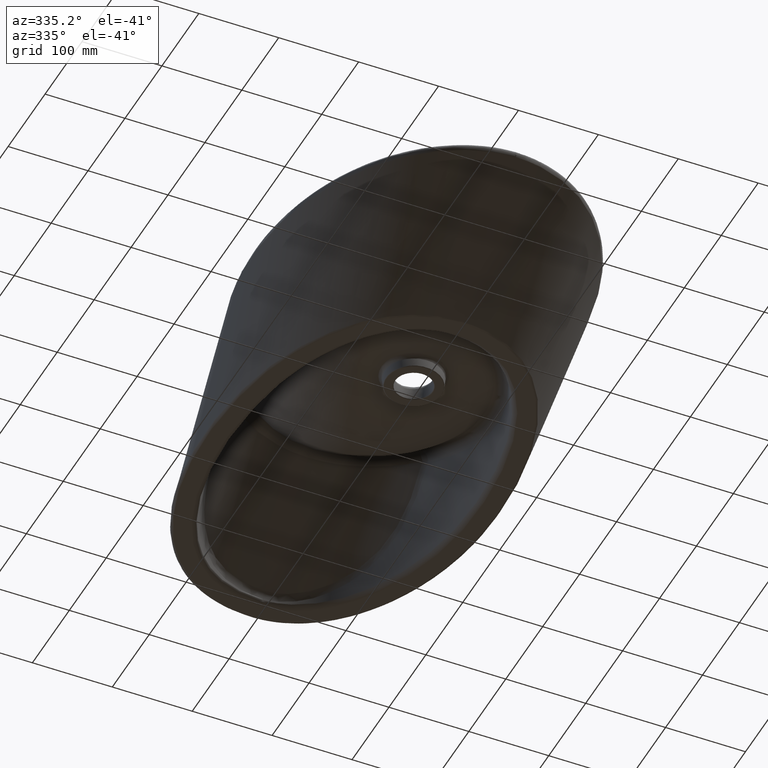
[diagram: clean part render]
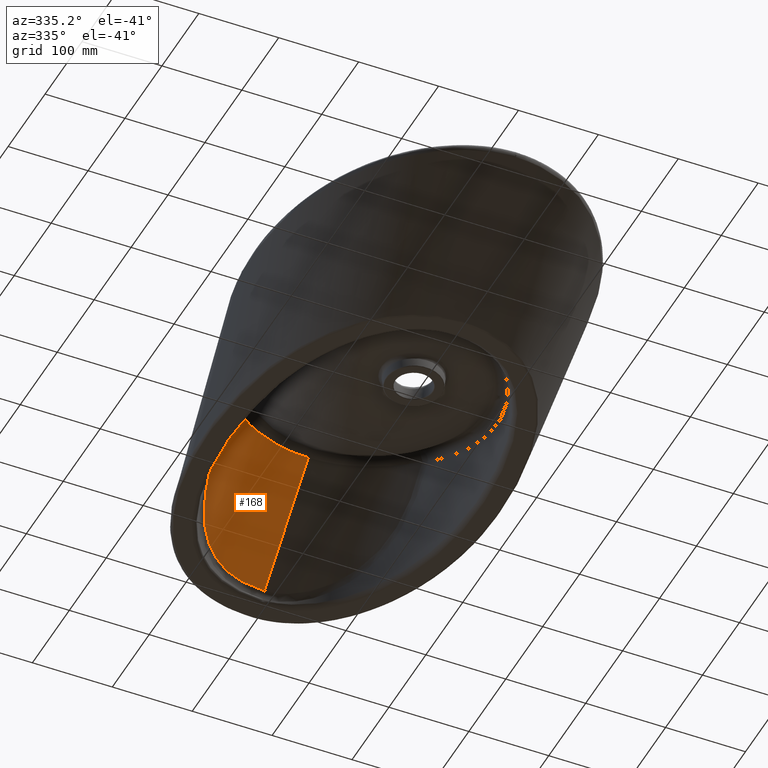
[diagram: same view with one face highlighted and labeled with its STEP entity id]
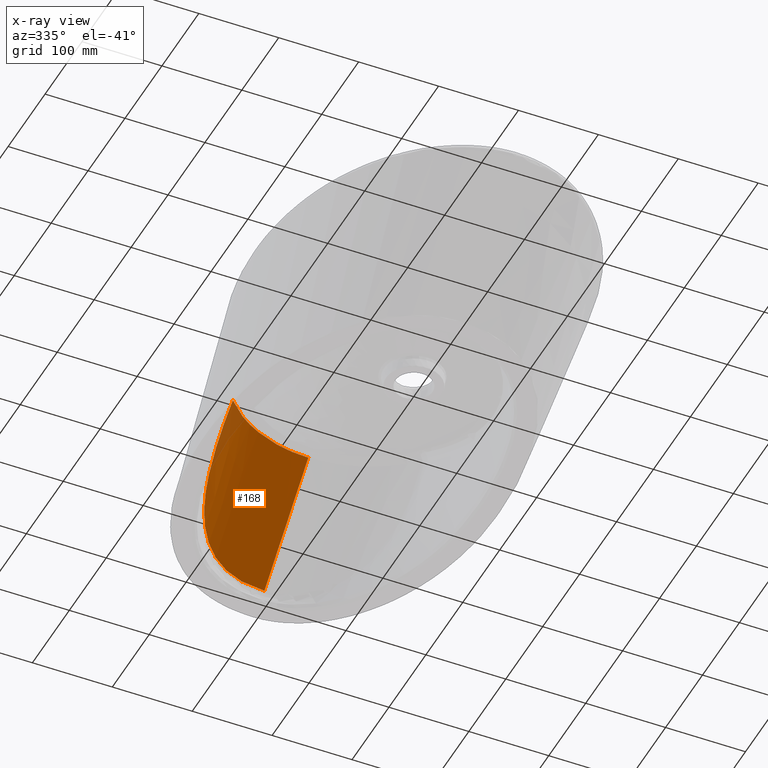
[diagram: x-ray of the same camera — body ghosted, the highlighted face saturated]
A machine part, auxiliary view. The second image highlights one B-rep face of the part: STEP entity #168.
The next image is the same camera in x-ray: the body ghosted, the highlighted face saturated — about 5% of this face is hidden behind the body in this view.
In plain terms, the highlighted face is a freeform B-spline surface patch.
Its self-contained STEP definition (entity closure, byte-faithful):
#124=B_SPLINE_SURFACE_WITH_KNOTS('',3,3,((#15208,#15209,#15210,#15211),
(#15212,#15213,#15214,#15215),(#15216,#15217,#15218,#15219),(#15220,#15221,
#15222,#15223),(#15224,#15225,#15226,#15227),(#15228,#15229,#15230,#15231),
(#15232,#15233,#15234,#15235),(#15236,#15237,#15238,#15239),(#15240,#15241,
#15242,#15243),(#15244,#15245,#15246,#15247),(#15248,#15249,#15250,#15251),
(#15252,#15253,#15254,#15255),(#15256,#15257,#15258,#15259),(#15260,#15261,
#15262,#15263),(#15264,#15265,#15266,#15267),(#15268,#15269,#15270,#15271),
(#15272,#15273,#15274,#15275),(#15276,#15277,#15278,#15279),(#15280,#15281,
#15282,#15283),(#15284,#15285,#15286,#15287),(#15288,#15289,#15290,#15291),
(#15292,#15293,#15294,#15295),(#15296,#15297,#15298,#15299),(#15300,#15301,
#15302,#15303),(#15304,#15305,#15306,#15307),(#15308,#15309,#15310,#15311),
(#15312,#15313,#15314,#15315),(#15316,#15317,#15318,#15319),(#15320,#15321,
#15322,#15323),(#15324,#15325,#15326,#15327),(#15328,#15329,#15330,#15331)),
 .UNSPECIFIED.,.F.,.F.,.F.,(4,3,3,3,3,3,3,3,3,3,4),(4,4),(0.,0.0625,0.125,
0.25,0.375,0.4375,0.46875,0.5,0.625,0.75,1.),(0.,1.),.UNSPECIFIED.);
#136=FACE_OUTER_BOUND('',#249,.T.);
#168=ADVANCED_FACE('',(#136),#124,.T.);
#249=EDGE_LOOP('',(#331,#332,#333));
#331=ORIENTED_EDGE('',*,*,#467,.F.);
#332=ORIENTED_EDGE('',*,*,#464,.T.);
#333=ORIENTED_EDGE('',*,*,#468,.F.);
#418=VERTEX_POINT('',#15028);
#419=VERTEX_POINT('',#15029);
#421=VERTEX_POINT('',#15195);
#464=EDGE_CURVE('',#418,#419,#522,.T.);
#467=EDGE_CURVE('',#418,#421,#525,.T.);
#468=EDGE_CURVE('',#421,#419,#526,.T.);
#522=B_SPLINE_CURVE_WITH_KNOTS('',3,(#15024,#15025,#15026,#15027),
 .UNSPECIFIED.,.F.,.F.,(4,4),(0.,1.),.UNSPECIFIED.);
#525=B_SPLINE_CURVE_WITH_KNOTS('',3,(#15169,#15170,#15171,#15172,#15173,
#15174,#15175,#15176,#15177,#15178,#15179,#15180,#15181,#15182,#15183,#15184,
#15185,#15186,#15187,#15188,#15189,#15190,#15191,#15192,#15193,#15194),
 .UNSPECIFIED.,.F.,.F.,(4,2,2,2,2,2,2,2,2,2,2,2,4),(0.,0.0625,0.125,0.1875,
0.25,0.375,0.4375,0.5,0.562499999999999,0.624999999999999,0.75,0.875,1.),
 .UNSPECIFIED.);
#526=B_SPLINE_CURVE_WITH_KNOTS('',3,(#15196,#15197,#15198,#15199,#15200,
#15201,#15202,#15203,#15204,#15205,#15206,#15207),.UNSPECIFIED.,.F.,.F.,
(4,2,2,2,2,4),(0.,0.25,0.5,0.625,0.75,1.),.UNSPECIFIED.);
#15024=CARTESIAN_POINT('',(0.00526221435447912,404.585390535855,-128.402446899208));
#15025=CARTESIAN_POINT('',(0.013482304066059,364.955097758971,-92.8837041527339));
#15026=CARTESIAN_POINT('',(0.0217517972458491,325.32480446231,-57.3649613170733));
#15027=CARTESIAN_POINT('',(0.0300698395684093,285.694510619619,-21.846218400915));
#15028=CARTESIAN_POINT('',(0.0030268173036909,404.58538890293,-128.402445360695));
#15029=CARTESIAN_POINT('',(0.0300752906413561,285.694511007152,-21.8462179021919));
#15169=CARTESIAN_POINT('',(0.00526221435444683,404.585390536568,-128.402446899847));
#15170=CARTESIAN_POINT('',(-5.84479397736561,404.581420674794,-128.398303884743));
#15171=CARTESIAN_POINT('',(-11.6686546200348,404.24147226028,-128.374219471475));
#15172=CARTESIAN_POINT('',(-23.2516911893435,402.740670141862,-128.198596000015));
#15173=CARTESIAN_POINT('',(-28.9809599261326,401.566848098731,-128.037076501992));
#15174=CARTESIAN_POINT('',(-40.0821515581655,398.343669660918,-127.504796034395));
#15175=CARTESIAN_POINT('',(-45.4904182574063,396.306700322967,-127.149301251226));
#15176=CARTESIAN_POINT('',(-56.0060958153043,391.341416278366,-126.203931678161));
#15177=CARTESIAN_POINT('',(-61.0447237896276,388.430622368401,-125.612461746905));
#15178=CARTESIAN_POINT('',(-75.1683611477704,378.623915369494,-123.36517505837));
#15179=CARTESIAN_POINT('',(-83.5393497676027,370.561511986093,-121.299098282006));
#15180=CARTESIAN_POINT('',(-94.1505992483372,357.28857163444,-117.292314278618));
#15181=CARTESIAN_POINT('',(-97.3994590895635,352.630234179171,-115.790426152635));
#15182=CARTESIAN_POINT('',(-103.206686192753,343.18130622598,-112.466915882935));
#15183=CARTESIAN_POINT('',(-105.785121447606,338.372926950398,-110.641589036555));
#15184=CARTESIAN_POINT('',(-110.397855216814,328.652452765974,-106.630864392746));
#15185=CARTESIAN_POINT('',(-112.42912262771,323.739912663223,-104.443148953366));
#15186=CARTESIAN_POINT('',(-115.98018969673,313.860763641147,-99.6271051165184));
#15187=CARTESIAN_POINT('',(-117.508570675528,308.859869266495,-96.9784728510605));
#15188=CARTESIAN_POINT('',(-121.302866374345,294.171646007261,-88.4909292947774));
#15189=CARTESIAN_POINT('',(-122.815183171886,284.774183232416,-82.0996292146151));
#15190=CARTESIAN_POINT('',(-124.508948728636,266.665555032568,-68.1237134668845));
#15191=CARTESIAN_POINT('',(-124.691641766524,257.909235713971,-60.5194884514314));
#15192=CARTESIAN_POINT('',(-124.146657647579,241.046379990769,-44.6636711215627));
#15193=CARTESIAN_POINT('',(-123.424769200599,232.95378232595,-36.4406241461405));
#15194=CARTESIAN_POINT('',(-122.388172659701,225.065706452454,-28.0432644481391));
#15195=CARTESIAN_POINT('',(-122.388172659701,225.065706452453,-28.0432644481386));
#15196=CARTESIAN_POINT('',(-122.388172659701,225.065706452453,-28.0432644481384));
#15197=CARTESIAN_POINT('',(-114.961655970901,234.236186104954,-26.8921776622449));
#15198=CARTESIAN_POINT('',(-106.778175792552,242.60286670883,-25.8874110990387));
#15199=CARTESIAN_POINT('',(-88.623288893781,257.43754669531,-24.2223637610885));
#15200=CARTESIAN_POINT('',(-78.5705924328633,263.900289120305,-23.5929418614976));
#15201=CARTESIAN_POINT('',(-62.8414135986258,271.813529151613,-22.9284916042052));
#15202=CARTESIAN_POINT('',(-57.4634116858846,274.168867243616,-22.7395626434815));
#15203=CARTESIAN_POINT('',(-46.421978334974,278.280532126651,-22.4113534248639));
#15204=CARTESIAN_POINT('',(-40.7254715195531,280.040547347075,-22.272185242991));
#15205=CARTESIAN_POINT('',(-23.5248271508844,284.258542682856,-21.9475187674602));
#15206=CARTESIAN_POINT('',(-11.8546249266025,285.700545634653,-21.8449227792393));
#15207=CARTESIAN_POINT('',(0.030069839282626,285.694511979074,-21.8462196193304));
#15208=CARTESIAN_POINT('',(0.978389827842134,284.977229181537,-21.2068317632611));
#15209=CARTESIAN_POINT('',(0.969080140628587,325.0834664354,-57.1518102427418));
#15210=CARTESIAN_POINT('',(0.959883168419812,365.189705684631,-93.0967865447074));
#15211=CARTESIAN_POINT('',(0.950805587187682,405.295947190886,-129.041760378659));
#15212=CARTESIAN_POINT('',(-2.36137308690813,285.002579470412,-21.2072028410091));
#15213=CARTESIAN_POINT('',(-2.36287716886204,325.106720512964,-57.15212832752));
#15214=CARTESIAN_POINT('',(-2.36450025699034,365.210853680476,-93.0970624827344));
#15215=CARTESIAN_POINT('',(-2.36624623822058,405.314978047681,-129.042006328953));
#15216=CARTESIAN_POINT('',(-5.67838462604163,284.90092925797,-21.2037154502028));
#15217=CARTESIAN_POINT('',(-5.65607622692948,325.011659765958,-57.1492625624812));
#15218=CARTESIAN_POINT('',(-5.63454200847416,365.122412462523,-93.0947845999663));
#15219=CARTESIAN_POINT('',(-5.61384743956083,405.233190432279,-129.040277944458));
#15220=CARTESIAN_POINT('',(-9.01180398411566,284.668834387521,-21.1958232870693));
#15221=CARTESIAN_POINT('',(-8.94930798435076,324.795976961289,-57.1425680665981));
#15222=CARTESIAN_POINT('',(-8.88848041455512,364.923163444808,-93.089268451172));
#15223=CARTESIAN_POINT('',(-8.82956533213082,405.050415329626,-129.035901121085));
#15224=CARTESIAN_POINT('',(-12.3452233421897,284.436739517073,-21.1879311239358));
#15225=CARTESIAN_POINT('',(-12.2425397417721,324.580294156619,-57.1358735707149));
#15226=CARTESIAN_POINT('',(-12.1424188206361,364.723914427094,-93.0837523023776));
#15227=CARTESIAN_POINT('',(-12.0452832247008,404.867640226974,-129.031524297712));
#15228=CARTESIAN_POINT('',(-15.6798634682971,284.074932542122,-21.1757222129892));
#15229=CARTESIAN_POINT('',(-15.5215943536315,324.24468048993,-57.1254264366702));
#15230=CARTESIAN_POINT('',(-15.3670314328904,364.414507710477,-93.075061901049));
#15231=CARTESIAN_POINT('',(-15.2168918551962,404.584485950621,-129.024551889314));
#15232=CARTESIAN_POINT('',(-19.0067478514066,283.582427472906,-21.1588427185695));
#15233=CARTESIAN_POINT('',(-18.7801766435472,323.789091792139,-57.1107976074023));
#15234=CARTESIAN_POINT('',(-18.5586086464305,363.995816769764,-93.0627263716222));
#15235=CARTESIAN_POINT('',(-18.3432016211766,404.202715911919,-129.014511697078));
#15236=CARTESIAN_POINT('',(-25.6605166176255,282.597417334474,-21.1250837297301));
#15237=CARTESIAN_POINT('',(-25.2973412233786,322.877914396557,-57.0815399488664));
#15238=CARTESIAN_POINT('',(-24.9417630735108,363.158434888338,-93.0380553127685));
#15239=CARTESIAN_POINT('',(-24.5958211531375,403.439175834515,-128.994431312604));
#15240=CARTESIAN_POINT('',(-32.2868476314642,281.08765437481,-21.0730173779254));
#15241=CARTESIAN_POINT('',(-31.7353136563642,321.485450125403,-57.0358063736258));
#15242=CARTESIAN_POINT('',(-31.194496602688,361.883088601537,-92.9989484596936));
#15243=CARTESIAN_POINT('',(-30.6679080722252,402.280885812512,-128.962140734122));
#15244=CARTESIAN_POINT('',(-38.8286586913922,279.060857814514,-21.0001628539433));
#15245=CARTESIAN_POINT('',(-38.0543514781783,319.622397075852,-56.9706051364157));
#15246=CARTESIAN_POINT('',(-37.2938298275458,360.183409495384,-92.941988310764));
#15247=CARTESIAN_POINT('',(-36.5525640956818,400.74427319607,-128.914022984077));
#15248=CARTESIAN_POINT('',(-45.3704697513201,277.034061254218,-20.9273083299611));
#15249=CARTESIAN_POINT('',(-44.3733892999923,317.759344026301,-56.9054038992056));
#15250=CARTESIAN_POINT('',(-43.3931630524036,358.483730389231,-92.8850281618345));
#15251=CARTESIAN_POINT('',(-42.4372201191385,399.207660579627,-128.865905234032));
#15252=CARTESIAN_POINT('',(-51.8332136544918,274.485345409996,-20.8341270106269));
#15253=CARTESIAN_POINT('',(-50.5775566712454,315.422195594227,-56.8210891297462));
#15254=CARTESIAN_POINT('',(-49.3416942595484,356.357595873464,-92.810457401699));
#15255=CARTESIAN_POINT('',(-48.1354650342329,397.291975617436,-128.802111364826));
#15256=CARTESIAN_POINT('',(-58.143253400172,271.455081305707,-20.7189721816921));
#15257=CARTESIAN_POINT('',(-56.6153681931672,312.644954858409,-56.7156565404551));
#15258=CARTESIAN_POINT('',(-55.1095802626907,353.832760346743,-92.7157511384253));
#15259=CARTESIAN_POINT('',(-53.6378411253632,395.018813035453,-128.719456751447));
#15260=CARTESIAN_POINT('',(-61.2982732730121,269.939949253562,-20.6613947672247));
#15261=CARTESIAN_POINT('',(-59.634273954128,311.256334490501,-56.6629402458095));
#15262=CARTESIAN_POINT('',(-57.9935232642619,352.570342583383,-92.6683980067884));
#15263=CARTESIAN_POINT('',(-56.3890291709284,393.882231744462,-128.678129444758));
#15264=CARTESIAN_POINT('',(-64.4047687786946,268.310507059305,-20.5983396710202));
#15265=CARTESIAN_POINT('',(-62.6046689469259,309.761940645594,-56.6051539650886));
#15266=CARTESIAN_POINT('',(-60.8285700146848,351.210759628446,-92.6162920718488));
#15267=CARTESIAN_POINT('',(-59.0898896439183,392.657208448124,-128.632197878416));
#15268=CARTESIAN_POINT('',(-67.4824123675605,266.553474233744,-20.527710395376));
#15269=CARTESIAN_POINT('',(-65.5381144678286,308.153406177787,-56.5398997842804));
#15270=CARTESIAN_POINT('',(-63.6194916427028,349.750187747962,-92.5572498663686));
#15271=CARTESIAN_POINT('',(-61.742200514313,391.343853499932,-128.580643265102));
#15272=CARTESIAN_POINT('',(-69.0212341619935,265.674957820963,-20.4923957575539));
#15273=CARTESIAN_POINT('',(-67.00483722828,307.349138943883,-56.5072726938763));
#15274=CARTESIAN_POINT('',(-65.0149524567118,349.01990180772,-92.5277287636285));
#15275=CARTESIAN_POINT('',(-63.0683559495104,390.687176025836,-128.554865958446));
#15276=CARTESIAN_POINT('',(-70.5712795012521,264.754574915293,-20.4560318627283));
#15277=CARTESIAN_POINT('',(-68.4757693488098,306.509171073256,-56.4733539990908));
#15278=CARTESIAN_POINT('',(-66.4077399764964,348.259995323319,-92.4967971917701));
#15279=CARTESIAN_POINT('',(-64.3855784854398,390.006783679034,-128.527833161324));
#15280=CARTESIAN_POINT('',(-72.0881570993336,263.819219223733,-20.4184423896105));
#15281=CARTESIAN_POINT('',(-69.9225883660281,305.652100832717,-56.4392615545849));
#15282=CARTESIAN_POINT('',(-67.7839100494661,347.481334647516,-92.4660813072782));
#15283=CARTESIAN_POINT('',(-65.6890045579561,389.306800743132,-128.500142034631));
#15284=CARTESIAN_POINT('',(-73.605034697415,262.883863532173,-20.3808529164926));
#15285=CARTESIAN_POINT('',(-71.3694073832463,304.795030592177,-56.405169110079));
#15286=CARTESIAN_POINT('',(-69.1600801224359,346.702673971712,-92.4353654227863));
#15287=CARTESIAN_POINT('',(-66.9924306304724,388.606817807229,-128.472450907938));
#15288=CARTESIAN_POINT('',(-75.0590432028225,261.949029336625,-20.3398241746017));
#15289=CARTESIAN_POINT('',(-72.770426955039,303.931972733261,-56.3693925157852));
#15290=CARTESIAN_POINT('',(-70.5058761813981,345.912080766682,-92.4039335312938));
#15291=CARTESIAN_POINT('',(-68.2767414533906,387.889804308642,-128.443704182739));
#15292=CARTESIAN_POINT('',(-76.459206942062,261.010224417519,-20.2953512803818));
#15293=CARTESIAN_POINT('',(-74.1253623612675,303.061389391082,-56.3296556476498));
#15294=CARTESIAN_POINT('',(-71.8151434587615,345.109893444973,-92.3687357380709));
#15295=CARTESIAN_POINT('',(-69.5389001643791,387.156318570051,-128.412638034496));
#15296=CARTESIAN_POINT('',(-82.0598618990204,257.255004741093,-20.1174597035021));
#15297=CARTESIAN_POINT('',(-79.5451039861812,299.579056022368,-56.1707081751086));
#15298=CARTESIAN_POINT('',(-77.0522125682153,341.901144158136,-92.2279445651795));
#15299=CARTESIAN_POINT('',(-74.5875350083333,384.222375615685,-128.288373441525));
#15300=CARTESIAN_POINT('',(-87.3985598001862,253.10746074251,-19.921924152902));
#15301=CARTESIAN_POINT('',(-84.7082132092979,295.729539709925,-55.9894597827829));
#15302=CARTESIAN_POINT('',(-82.044100586004,338.348220199901,-92.0631456595723));
#15303=CARTESIAN_POINT('',(-79.4168966186043,380.96434598355,-128.142847708278));
#15304=CARTESIAN_POINT('',(-92.4096879725248,248.656106912787,-19.7013600969154));
#15305=CARTESIAN_POINT('',(-89.5867690401703,291.577357177714,-55.7872056594546));
#15306=CARTESIAN_POINT('',(-86.7907791297002,334.495011535986,-91.8796337779472));
#15307=CARTESIAN_POINT('',(-84.0319458787688,377.410122950199,-127.978254192287));
#15308=CARTESIAN_POINT('',(-97.4208161448635,244.204753083064,-19.4807960409287));
#15309=CARTESIAN_POINT('',(-94.4653248710427,287.425174645503,-55.5849515361262));
#15310=CARTESIAN_POINT('',(-91.5374576733964,330.641802872071,-91.6961218963221));
#15311=CARTESIAN_POINT('',(-88.6469951389332,373.855899916848,-127.813660676295));
#15312=CARTESIAN_POINT('',(-102.129615874483,239.438968463667,-19.2386759108567));
#15313=CARTESIAN_POINT('',(-99.0710652020094,282.964378752084,-55.3617320893055));
#15314=CARTESIAN_POINT('',(-96.0406530739379,326.485801643659,-91.4922049786189));
#15315=CARTESIAN_POINT('',(-93.0477245745784,370.004695047252,-127.629188359532));
#15316=CARTESIAN_POINT('',(-106.578459866686,234.394555800449,-18.9821479207951));
#15317=CARTESIAN_POINT('',(-103.436172881598,278.225850690486,-55.1226319600141));
#15318=CARTESIAN_POINT('',(-100.322221114536,322.052919674746,-91.27094690299));
#15319=CARTESIAN_POINT('',(-97.2455625194716,365.877338737765,-127.426013836626));
#15320=CARTESIAN_POINT('',(-115.476147851092,224.305730474013,-18.469091940672));
#15321=CARTESIAN_POINT('',(-112.166388240776,268.748794567289,-54.6444317014312));
#15322=CARTESIAN_POINT('',(-108.885357195732,313.18715573692,-90.8284307517322));
#15323=CARTESIAN_POINT('',(-105.641238409258,357.622626118792,-127.019664790816));
#15324=CARTESIAN_POINT('',(-123.345210427768,213.097732419709,-17.9016759939579));
#15325=CARTESIAN_POINT('',(-119.942674915265,258.15774155283,-54.1048301219445));
#15326=CARTESIAN_POINT('',(-116.567766727292,303.212287160778,-90.317640623913));
#15327=CARTESIAN_POINT('',(-113.228106013773,348.263011000126,-126.538811514441));
#15328=CARTESIAN_POINT('',(-130.435798054436,201.064559988243,-17.3343419621905));
#15329=CARTESIAN_POINT('',(-126.956654716994,246.700900323438,-53.5454001017111));
#15330=CARTESIAN_POINT('',(-123.501496211564,292.33147310496,-89.7662481333443));
#15331=CARTESIAN_POINT('',(-120.076904090197,337.95736530843,-125.99617998557));